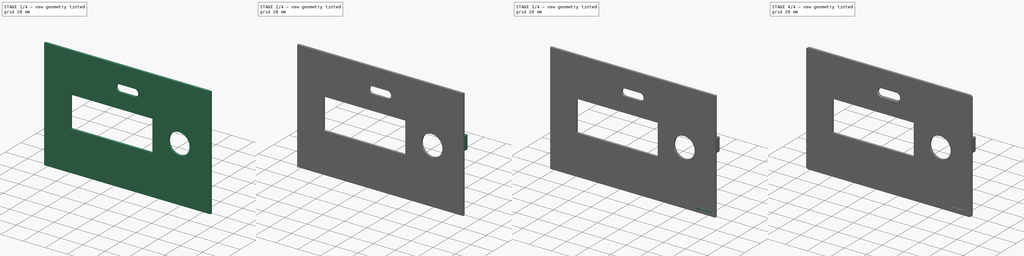
[diagram: build sequence overview — one tinted view per stage of 4, left to right]
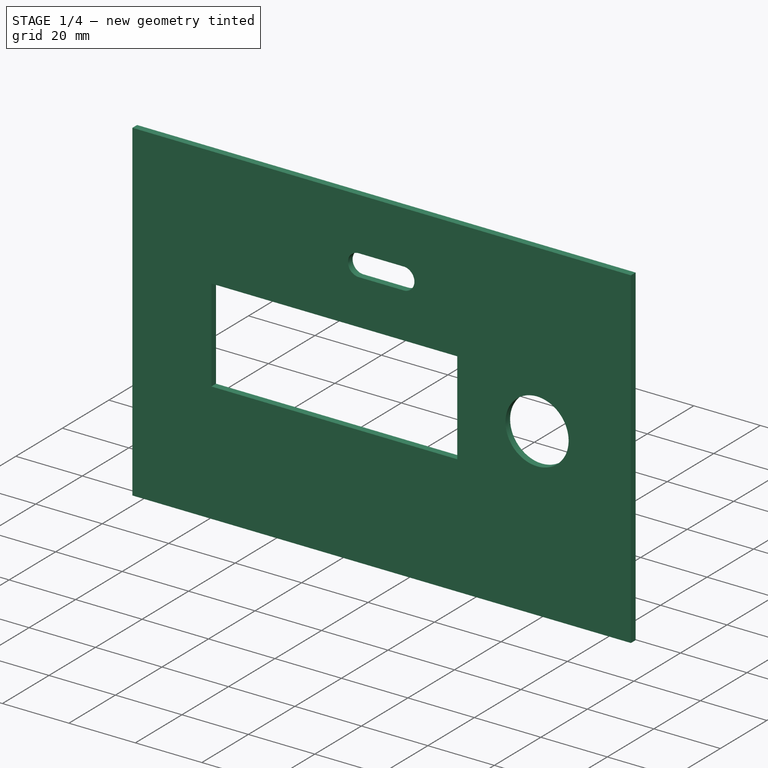
[diagram: stage 1 of 4 — iso view after this stage's code; geometry added in this stage tinted green]
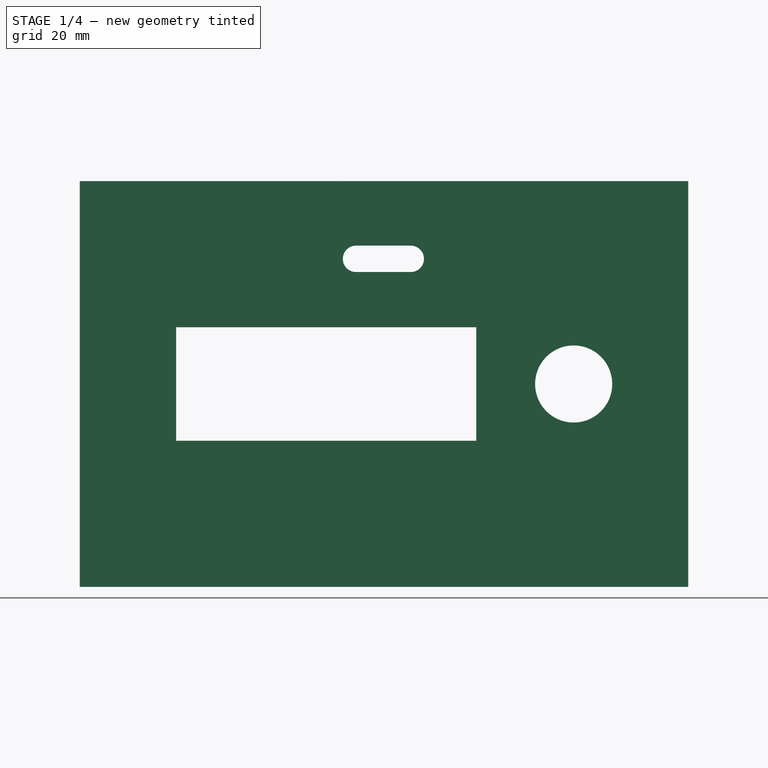
[diagram: stage 1 of 4 — front view after this stage's code; geometry added in this stage tinted green]
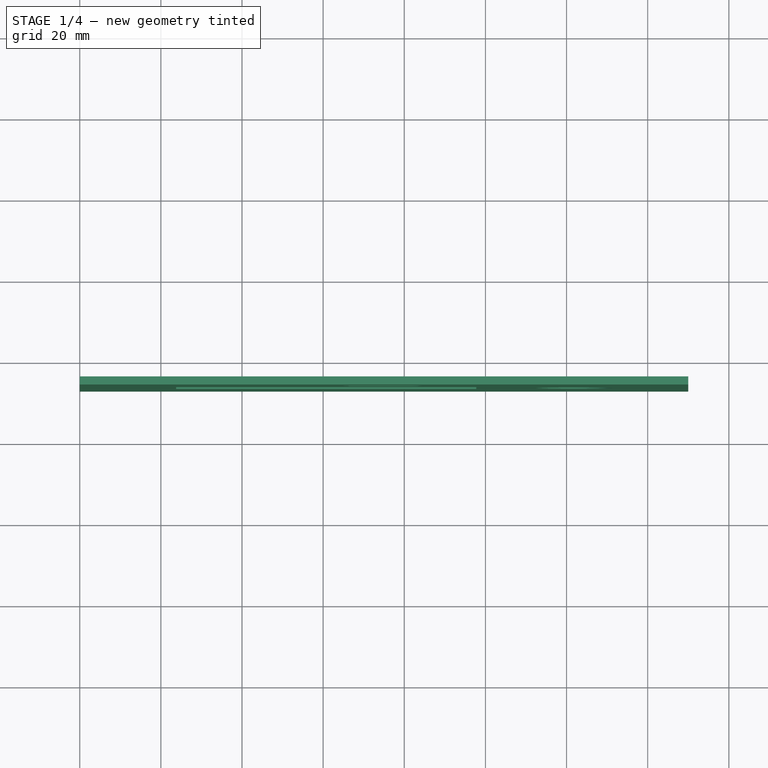
[diagram: stage 1 of 4 — top view after this stage's code; geometry added in this stage tinted green]
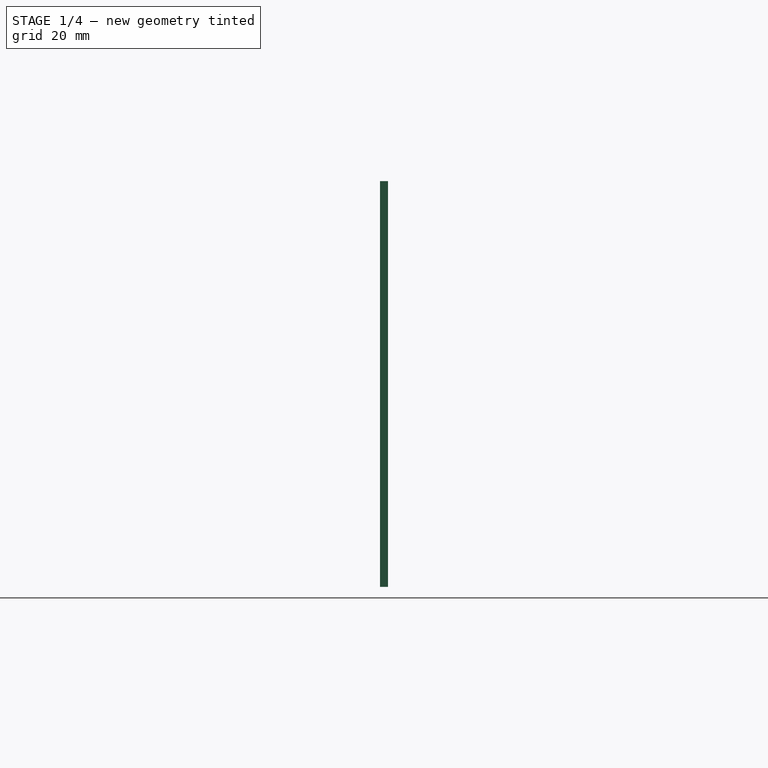
[diagram: stage 1 of 4 — right view after this stage's code; geometry added in this stage tinted green]
FCSTD DOCUMENT  (FreeCAD 0.19R22665 (Git))
Label: coperchio
License: All rights reserved
LicenseURL: http://en.wikipedia.org/wiki/All_rights_reserved
objects: Sketcher::SketchObject×7, PartDesign::Pocket×5, PartDesign::Pad×3, PartDesign::CoordinateSystem×2, PartDesign::Body×2, Part::Fillet×2, Part::Part2DObjectPython×1, Part::Extrusion×1, Part::MultiFuse×1, App::Part×1
note: 32 computed .brp shape members not serialized (recipe doc carries the construction recipe); baked Part::Feature solids carry a one-line shape summary decoded from their .brp

FEATURE [Sketcher::SketchObject] Sketch008
  MapMode = 5
  Placement = pos=(0,-45,1e-16) rot=(1,0,0;1.5708rad)
  sketch-geometry (4):
    g0: LineSegment StartX=0 StartY=0 StartZ=0 EndX=150 EndY=0 EndZ=0
    g1: LineSegment StartX=150 StartY=0 StartZ=0 EndX=150 EndY=100 EndZ=0
    g2: LineSegment StartX=150 StartY=100 StartZ=0 EndX=0 EndY=100 EndZ=0
    g3: LineSegment StartX=0 StartY=100 StartZ=0 EndX=0 EndY=0 EndZ=0
  constraints (11):
    c: Coincident(g0,g1)
    c: Coincident(g1,g2)
    c: Coincident(g2,g3)
    c: Coincident(g3,g0)
    c: Horizontal(g0)
    c: Horizontal(g2)
    c: Vertical(g1)
    c: Vertical(g3)
    c: Coincident(g0,g-1)
    c: DistanceY(g0,g2) = 100
    c: DistanceX(g0,g0) = 150
FEATURE [PartDesign::Pad] Pad002
  Direction = (1,1,1)
  Length = 2
  Length2 = 100
  Placement = pos=(0,-45,1e-16) rot=(1,0,0;1.5708rad)
  Profile = -> Sketch008
  Type = 0
FEATURE [Sketcher::SketchObject] Sketch009
  ExternalGeometry = -> [Pad002]
  MapMode = 5
  Placement = pos=(0,-47,5e-16) rot=(1,0,0;1.5708rad)
  Support = -> [Pad002]
  sketch-geometry (22):
    g0: LineSegment StartX=23.75 StartY=64 StartZ=0 EndX=97.75 EndY=64 EndZ=0
    g1: LineSegment StartX=97.75 StartY=64 StartZ=0 EndX=97.75 EndY=36 EndZ=0
    g2: LineSegment StartX=97.75 StartY=36 StartZ=0 EndX=23.75 EndY=36 EndZ=0
    g3: LineSegment StartX=23.75 StartY=36 StartZ=0 EndX=23.75 EndY=64 EndZ=0
    g4: LineSegment [constr] StartX=18.75 StartY=86 StartZ=0 EndX=101.75 EndY=86 EndZ=0
    g5: LineSegment [constr] StartX=101.75 StartY=86 StartZ=0 EndX=101.75 EndY=14 EndZ=0
    g6: LineSegment [constr] StartX=101.75 StartY=14 StartZ=0 EndX=18.75 EndY=14 EndZ=0
    g7: LineSegment [constr] StartX=18.75 StartY=14 StartZ=0 EndX=18.75 EndY=86 EndZ=0
    g8: Circle CenterX=121.75 CenterY=50 CenterZ=0 NormalX=0 NormalY=0 NormalZ=1 AngleXU=0 Radius=9.5
    g9: LineSegment [constr] StartX=20.75 StartY=68 StartZ=0 EndX=100.75 EndY=68 EndZ=0
    g10: LineSegment [constr] StartX=100.75 StartY=68 StartZ=0 EndX=100.75 EndY=32 EndZ=0
    g11: LineSegment [constr] StartX=100.75 StartY=32 StartZ=0 EndX=20.75 EndY=32 EndZ=0
    g12: LineSegment [constr] StartX=20.75 StartY=32 StartZ=0 EndX=20.75 EndY=68 EndZ=0
    g13: LineSegment [constr] StartX=0 StartY=50 StartZ=0 EndX=150 EndY=50 EndZ=0
    g14: LineSegment [constr] StartX=60.75 StartY=68 StartZ=0 EndX=60.75 EndY=32 EndZ=0
    g15: Circle [constr] CenterX=9.375 CenterY=50 CenterZ=0 NormalX=0 NormalY=0 NormalZ=1 AngleXU=0 Radius=9.375
    g16: Circle [constr] CenterX=140.625 CenterY=50 CenterZ=0 NormalX=0 NormalY=0 NormalZ=1 AngleXU=0 Radius=9.375
    g17: ArcOfCircle CenterX=68.1 CenterY=80.85 CenterZ=0 NormalX=0 NormalY=0 NormalZ=1 AngleXU=0 Radius=3.25 StartAngle=1.5708 EndAngle=4.71239
    g18: ArcOfCircle CenterX=81.6 CenterY=80.85 CenterZ=0 NormalX=0 NormalY=0 NormalZ=1 AngleXU=0 Radius=3.25 StartAngle=4.71239 EndAngle=7.85398
    g19: LineSegment StartX=68.1 StartY=77.6 StartZ=0 EndX=81.6 EndY=77.6 EndZ=0
    g20: LineSegment StartX=68.1 StartY=84.1 StartZ=0 EndX=81.6 EndY=84.1 EndZ=0
    g21: LineSegment [constr] StartX=64.85 StartY=80.85 StartZ=0 EndX=84.85 EndY=80.85 EndZ=0
  constraints (61):
    c: Coincident(g0,g1)
    c: Coincident(g1,g2)
    c: Coincident(g2,g3)
    c: Coincident(g3,g0)
    c: Horizontal(g0)
    c: Horizontal(g2)
    c: Vertical(g1)
    c: Coincident(g4,g5)
    c: Coincident(g5,g6)
    c: Coincident(g6,g7)
    c: Coincident(g7,g4)
    c: Horizontal(g4)
    c: Horizontal(g6)
    c: Vertical(g5)
    c: Diameter(g8) = 19
    c: DistanceX(g4,g4) = 83
    c: Coincident(g9,g10)
    c: Coincident(g10,g11)
    c: Coincident(g11,g12)
    c: Coincident(g12,g9)
    c: Horizontal(g11)
    c: Vertical(g10)
    c: Vertical(g12)
    c: DistanceX(g9,g9) = 80
    c: DistanceX(g6,g11) = 2
    c: DistanceY(g9,g4) = 18
    c: DistanceY(g6,g11) = 18
    c: DistanceY(g12,g12) = 36
    c: PointOnObject(g13,g-3)
    c: PointOnObject(g13,g-6)
    c: Symmetric(g-4,g-1,g13)
    c: Symmetric(g4,g6,g13)
    c: PointOnObject(g8,g13)
    c: Symmetric(g0,g2,g13)
    c: PointOnObject(g14,g9)
    c: PointOnObject(g14,g11)
    c: Symmetric(g9,g9,g14)
    c: Symmetric(g0,g0,g14)
    c: Distance(g0) = 74
    c: Distance(g3) = 28
    c: Distance(g8,g5) = 20
    c: PointOnObject(g15,g13)
    c: PointOnObject(g13,g15)
    c: Tangent(g15,g7)
    c: PointOnObject(g16,g13)
    c: PointOnObject(g13,g16)
    c: Tangent(g16,g8)
    c: Equal(g16,g15)
    c: Tangent(g17,g20)
    c: Tangent(g17,g19)
    c: Tangent(g19,g18)
    c: Tangent(g20,g18)
    c: Horizontal(g19)
    c: Equal(g17,g18)
    c: DistanceY(g9,g18) = 9.6
    c: DistanceY(g18,g18) = 6.5
    c: PointOnObject(g21,g17)
    c: PointOnObject(g21,g18)
    c: Symmetric(g17,g17,g21)
    c: Distance(g21,g21) = 20
    c: DistanceX(g21,g9) = 15.9
FEATURE [PartDesign::Pocket] Pocket004
  BaseFeature = -> Pad002
  Length = 5
  Length2 = 100
  Placement = pos=(0,-45,1e-16) rot=(1,0,0;1.5708rad)
  Profile = -> Sketch009
  Type = 2
FEATURE [Sketcher::SketchObject] Sketch012
  MapMode = 5
  Placement = pos=(97.75,-45,0) rot=(0.707107,0,-0.707107;3.14159rad)
  sketch-geometry (5):
    g0: LineSegment StartX=-41 StartY=-1.54e-14 StartZ=0 EndX=-59 EndY=-1.54e-14 EndZ=0
    g1: LineSegment StartX=-59 StartY=-1.54e-14 StartZ=0 EndX=-59 EndY=1 EndZ=0
    g2: LineSegment StartX=-59 StartY=1 StartZ=0 EndX=-41 EndY=1 EndZ=0
    g3: LineSegment StartX=-41 StartY=1 StartZ=0 EndX=-41 EndY=-1.54e-14 EndZ=0
    g4: LineSegment [constr] StartX=-50 StartY=2 StartZ=0 EndX=-50 EndY=-1.55e-14 EndZ=0
  constraints (11):
    c: Coincident(g0,g1)
    c: Coincident(g1,g2)
    c: Coincident(g2,g3)
    c: Coincident(g3,g0)
    c: Horizontal(g0)
    c: Vertical(g1)
    c: Vertical(g3)
    c: Symmetric(g1,g2,g4)
    c: DistanceY(g1,g1) = 1
    c: DistanceX(g2,g2) = 18
    c: PointOnObject(g4,g0)
FEATURE [PartDesign::Pocket] Pocket007
  BaseFeature = -> Pocket004
  Length = 6
  Length2 = 100
  Placement = pos=(0,-45,1e-16) rot=(1,0,0;1.5708rad)
  Profile = -> Sketch012
  Type = 0
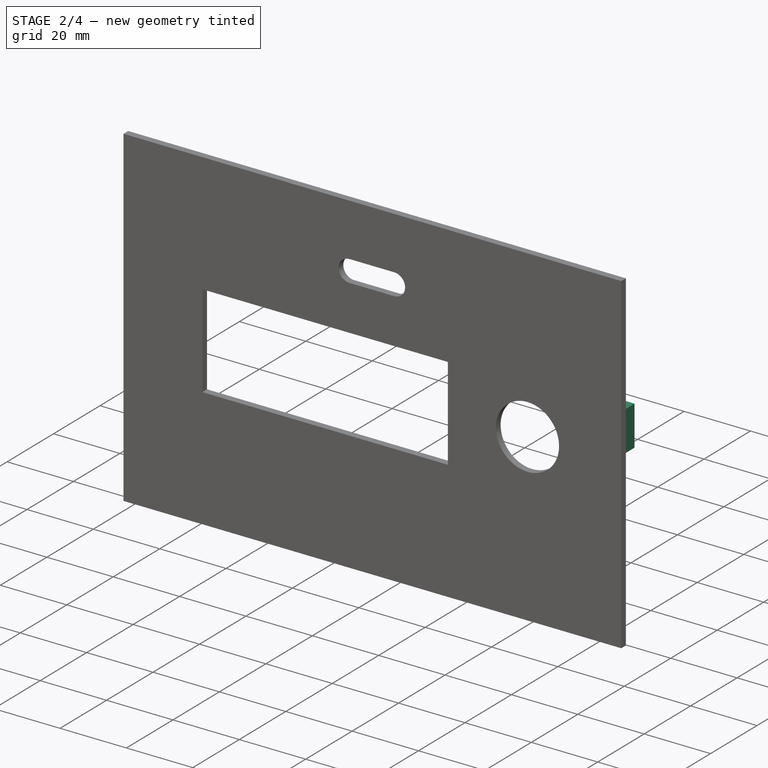
[diagram: stage 2 of 4 — iso view after this stage's code; geometry added in this stage tinted green]
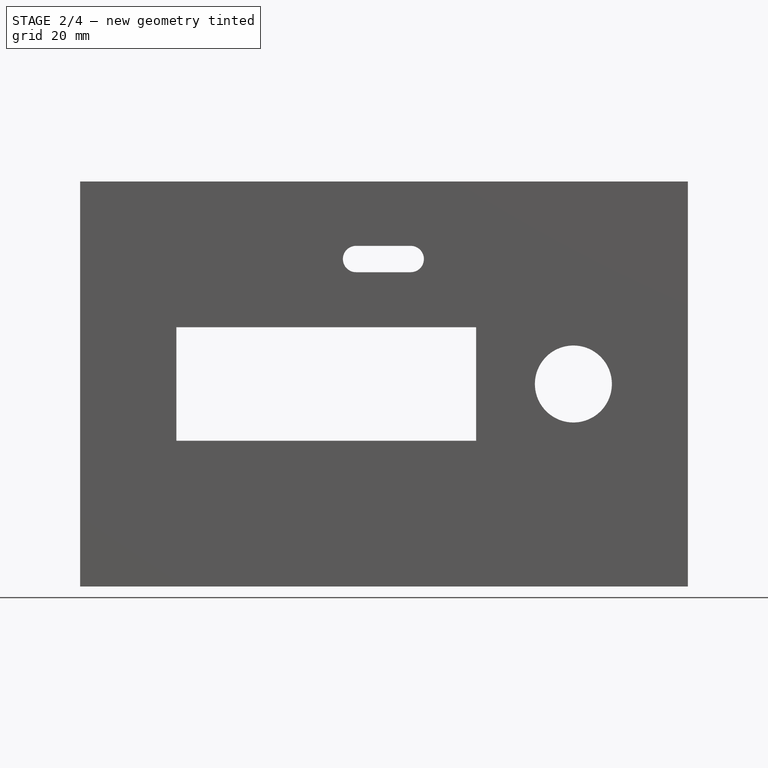
[diagram: stage 2 of 4 — front view after this stage's code; geometry added in this stage tinted green]
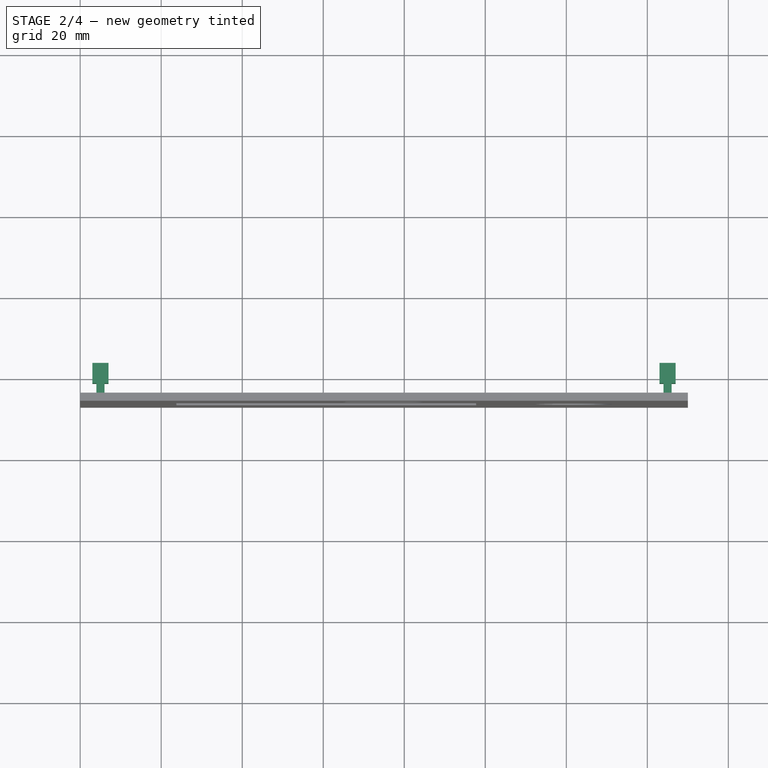
[diagram: stage 2 of 4 — top view after this stage's code; geometry added in this stage tinted green]
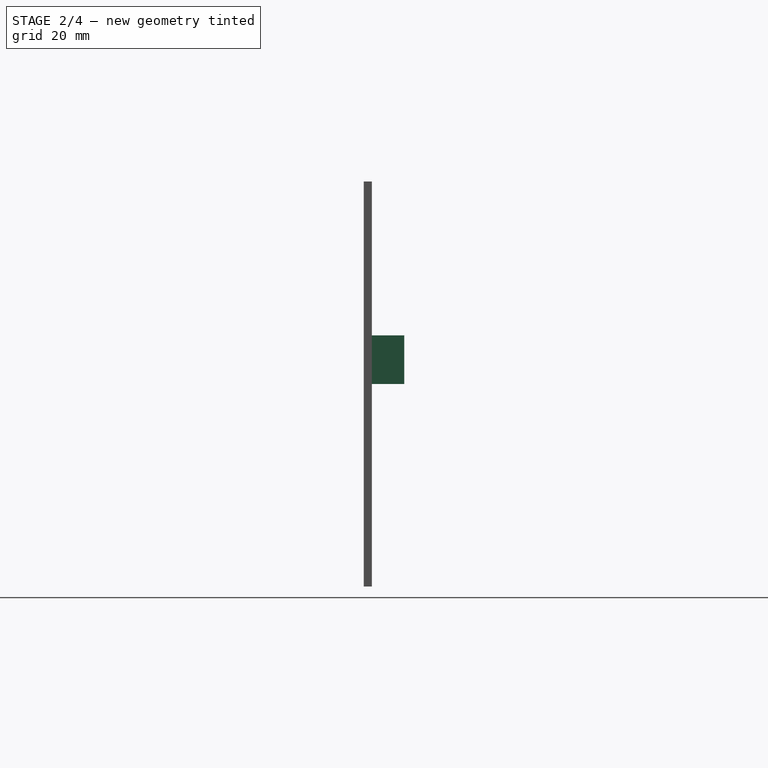
[diagram: stage 2 of 4 — right view after this stage's code; geometry added in this stage tinted green]
FEATURE [PartDesign::CoordinateSystem] LCS_button
  AttacherType = Attacher::AttachEngine3D
  MapMode = 11
  Placement = pos=(121.75,-47,50) rot=(0.57735,-0.57735,0.57735;2.0944rad)
  Support = -> [Pocket007]
FEATURE [Sketcher::SketchObject] Sketch
  ExternalGeometry = -> [Pocket007]
  MapMode = 5
  Placement = pos=(0,-45,1e-16) rot=(-1,0,0;1.5708rad)
  Support = -> [Pocket007]
  sketch-geometry (9):
    g0: LineSegment StartX=2 StartY=-50 StartZ=0 EndX=8 EndY=-50 EndZ=0
    g1: LineSegment StartX=8 StartY=-50 StartZ=0 EndX=8 EndY=-62 EndZ=0
    g2: LineSegment StartX=8 StartY=-62 StartZ=0 EndX=2 EndY=-62 EndZ=0
    g3: LineSegment StartX=2 StartY=-62 StartZ=0 EndX=2 EndY=-50 EndZ=0
    g4: LineSegment [constr] StartX=0 StartY=-50 StartZ=0 EndX=150 EndY=-50 EndZ=0
    g5: LineSegment StartX=142 StartY=-50 StartZ=0 EndX=148 EndY=-50 EndZ=0
    g6: LineSegment StartX=148 StartY=-50 StartZ=0 EndX=148 EndY=-62 EndZ=0
    g7: LineSegment StartX=148 StartY=-62 StartZ=0 EndX=142 EndY=-62 EndZ=0
    g8: LineSegment StartX=142 StartY=-62 StartZ=0 EndX=142 EndY=-50 EndZ=0
  constraints (27):
    c: Coincident(g0,g1)
    c: Coincident(g1,g2)
    c: Coincident(g2,g3)
    c: Coincident(g3,g0)
    c: Horizontal(g0)
    c: Horizontal(g2)
    c: Vertical(g3)
    c: PointOnObject(g4,g-4)
    c: PointOnObject(g4,g-3)
    c: Symmetric(g-1,g-5,g4)
    c: DistanceX(g4,g0) = 2
    c: DistanceY(g1,g1) = 12
    c: DistanceX(g0,g0) = 6
    c: Coincident(g5,g6)
    c: Coincident(g6,g7)
    c: Coincident(g7,g8)
    c: Coincident(g8,g5)
    c: Horizontal(g5)
    c: Horizontal(g7)
    c: Vertical(g8)
    c: Equal(g8,g1)
    c: Equal(g0,g5)
    c: DistanceX(g6,g4) = 2
    c: Vertical(g6)
    c: Vertical(g1)
    c: PointOnObject(g5,g4)
    c: PointOnObject(g0,g4)
FEATURE [PartDesign::Pad] Pad
  BaseFeature = -> Pocket007
  Direction = (1,1,1)
  Length = 8
  Length2 = 100
  Placement = pos=(0,-45,1e-16) rot=(1,0,0;1.5708rad)
  Profile = -> Sketch
  Type = 0
FEATURE [Sketcher::SketchObject] Sketch013
  ExternalGeometry = -> [Pad]
  MapMode = 5
  Placement = pos=(0,-45,50) rot=(1,0,0;3.14159rad)
  Support = -> [Pad]
  sketch-geometry (24):
    g0: LineSegment StartX=2 StartY=-8 StartZ=0 EndX=3 EndY=-8 EndZ=0
    g1: LineSegment StartX=3 StartY=-8 StartZ=0 EndX=3 EndY=-3 EndZ=0
    g2: LineSegment StartX=3 StartY=-3 StartZ=0 EndX=4 EndY=-3 EndZ=0
    g3: LineSegment StartX=4 StartY=-3 StartZ=0 EndX=4 EndY=0 EndZ=0
    g4: LineSegment StartX=4 StartY=0 StartZ=0 EndX=2 EndY=0 EndZ=0
    g5: LineSegment StartX=2 StartY=0 StartZ=0 EndX=2 EndY=-8 EndZ=0
    g6: LineSegment StartX=7 StartY=-8 StartZ=0 EndX=8 EndY=-8 EndZ=0
    g7: LineSegment StartX=8 StartY=-8 StartZ=0 EndX=8 EndY=0 EndZ=0
    g8: LineSegment StartX=8 StartY=0 StartZ=0 EndX=6 EndY=0 EndZ=0
    g9: LineSegment StartX=6 StartY=0 StartZ=0 EndX=6 EndY=-3 EndZ=0
    g10: LineSegment StartX=6 StartY=-3 StartZ=0 EndX=7 EndY=-3 EndZ=0
    g11: LineSegment StartX=7 StartY=-3 StartZ=0 EndX=7 EndY=-8 EndZ=0
    g12: LineSegment StartX=142 StartY=-8 StartZ=0 EndX=143 EndY=-8 EndZ=0
    g13: LineSegment StartX=143 StartY=-8 StartZ=0 EndX=143 EndY=-3 EndZ=0
    g14: LineSegment StartX=143 StartY=-3 StartZ=0 EndX=144 EndY=-3 EndZ=0
    g15: LineSegment StartX=144 StartY=-3 StartZ=0 EndX=144 EndY=1.2e-14 EndZ=0
    g16: LineSegment StartX=144 StartY=1.2e-14 StartZ=0 EndX=142 EndY=0 EndZ=0
    g17: LineSegment StartX=142 StartY=0 StartZ=0 EndX=142 EndY=-8 EndZ=0
    g18: LineSegment StartX=146 StartY=0 StartZ=0 EndX=146 EndY=-3 EndZ=0
    g19: LineSegment StartX=146 StartY=-3 StartZ=0 EndX=147 EndY=-3 EndZ=0
    g20: LineSegment StartX=147 StartY=-3 StartZ=0 EndX=147 EndY=-8 EndZ=0
    g21: LineSegment StartX=147 StartY=-8 StartZ=0 EndX=148 EndY=-8 EndZ=0
    g22: LineSegment StartX=148 StartY=-8 StartZ=0 EndX=148 EndY=0 EndZ=0
    g23: LineSegment StartX=148 StartY=0 StartZ=0 EndX=146 EndY=0 EndZ=0
  constraints (64):
    c: Coincident(g-5,g0)
    c: PointOnObject(g0,g-3)
    c: Coincident(g0,g1)
    c: Vertical(g1)
    c: Coincident(g1,g2)
    c: Horizontal(g2)
    c: Coincident(g2,g3)
    c: PointOnObject(g3,g-6)
    c: Vertical(g3)
    c: Coincident(g3,g4)
    c: Coincident(g4,g-5)
    c: Coincident(g4,g5)
    c: Coincident(g5,g0)
    c: DistanceX(g0,g0) = 1
    c: DistanceY(g1,g1) = 5
    c: DistanceX(g2,g2) = 1
    c: PointOnObject(g6,g-3)
    c: Coincident(g6,g-4)
    c: Coincident(g6,g7)
    c: Coincident(g7,g-4)
    c: Coincident(g7,g8)
    c: PointOnObject(g8,g-6)
    c: Coincident(g8,g9)
    c: Vertical(g9)
    c: Coincident(g9,g10)
    c: Coincident(g10,g11)
    c: Coincident(g11,g6)
    c: Vertical(g11)
    c: Equal(g2,g10)
    c: Equal(g9,g3)
    c: Equal(g11,g1)
    c: Equal(g6,g0)
    c: Coincident(g-9,g12)
    c: PointOnObject(g12,g-9)
    c: Coincident(g12,g13)
    c: Vertical(g13)
    c: Coincident(g13,g14)
    c: Horizontal(g14)
    c: Coincident(g14,g15)
    c: Vertical(g15)
    c: Coincident(g15,g16)
    c: Coincident(g16,g-7)
    c: Coincident(g16,g17)
    c: Coincident(g17,g12)
    c: PointOnObject(g18,g-6)
    c: Vertical(g18)
    c: Coincident(g18,g19)
    c: Horizontal(g19)
    c: Coincident(g19,g20)
    c: Vertical(g20)
    c: Coincident(g20,g21)
    c: Coincident(g21,g-9)
    c: Coincident(g21,g22)
    c: Coincident(g22,g-8)
    c: Coincident(g22,g23)
    c: Coincident(g23,g18)
    c: Equal(g12,g21)
    c: Equal(g13,g20)
    c: Equal(g14,g19)
    c: Equal(g15,g18)
    c: Equal(g12,g6)
    c: Equal(g11,g20)
    c: Equal(g15,g9)
    c: Equal(g2,g14)
FEATURE [PartDesign::Pocket] Pocket
  Length = 12
  Length2 = 6
  Placement = pos=(0,-45,1e-16) rot=(1,0,0;1.5708rad)
  Profile = -> Sketch013
  Type = 0
FEATURE [PartDesign::Body] Body
  Group = -> [Pocket,Sketch014,Pad003,Sketch015,Pocket008]
  Origin = -> Origin
  Tip = -> Pocket008
FEATURE [PartDesign::Pocket] Pocket009
  BaseFeature = -> Pad
  Length = 12
  Length2 = 100
  Placement = pos=(0,-45,1e-16) rot=(1,0,0;1.5708rad)
  Profile = -> Sketch013
  Type = 0
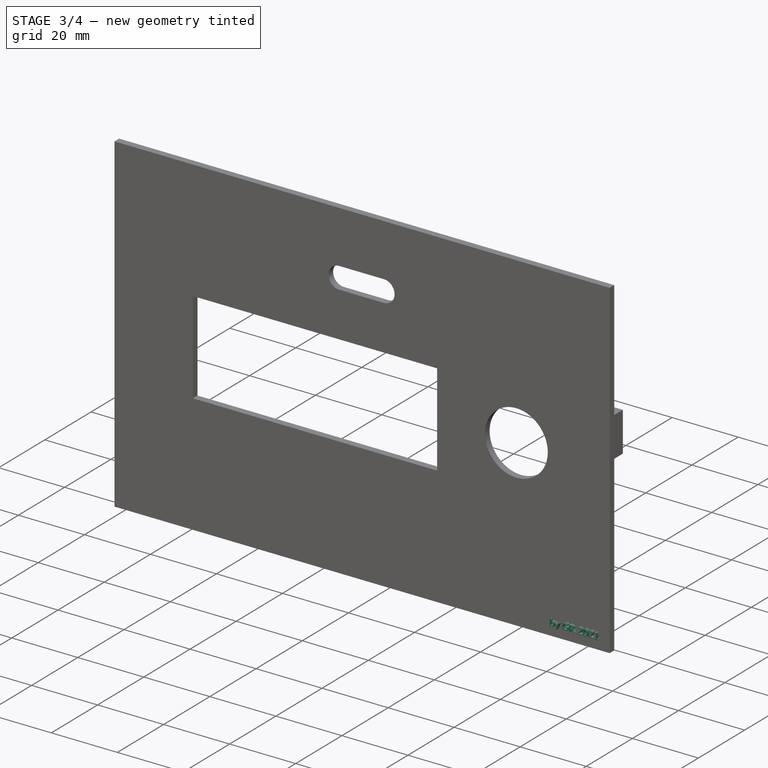
[diagram: stage 3 of 4 — iso view after this stage's code; geometry added in this stage tinted green]
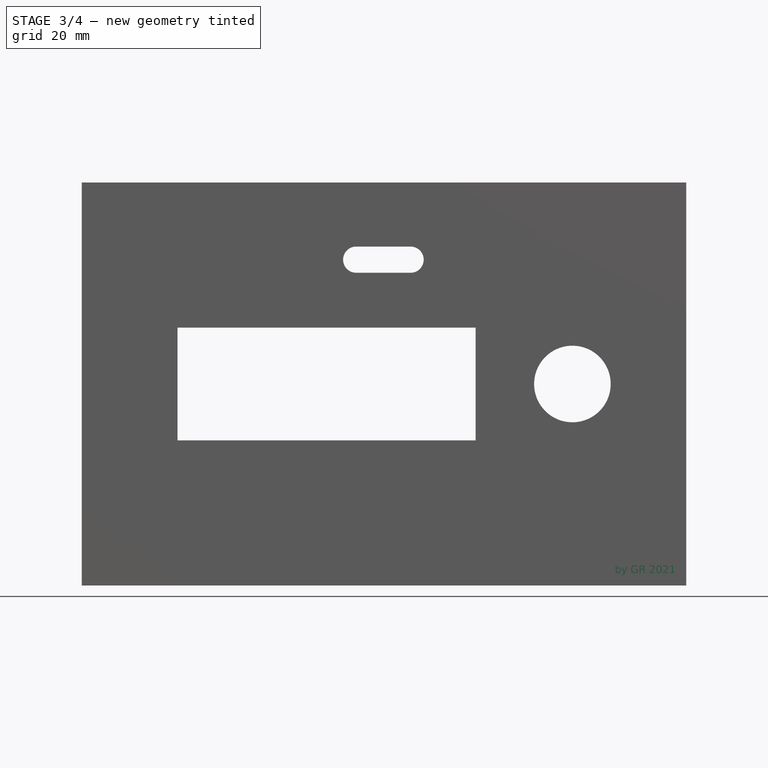
[diagram: stage 3 of 4 — front view after this stage's code; geometry added in this stage tinted green]
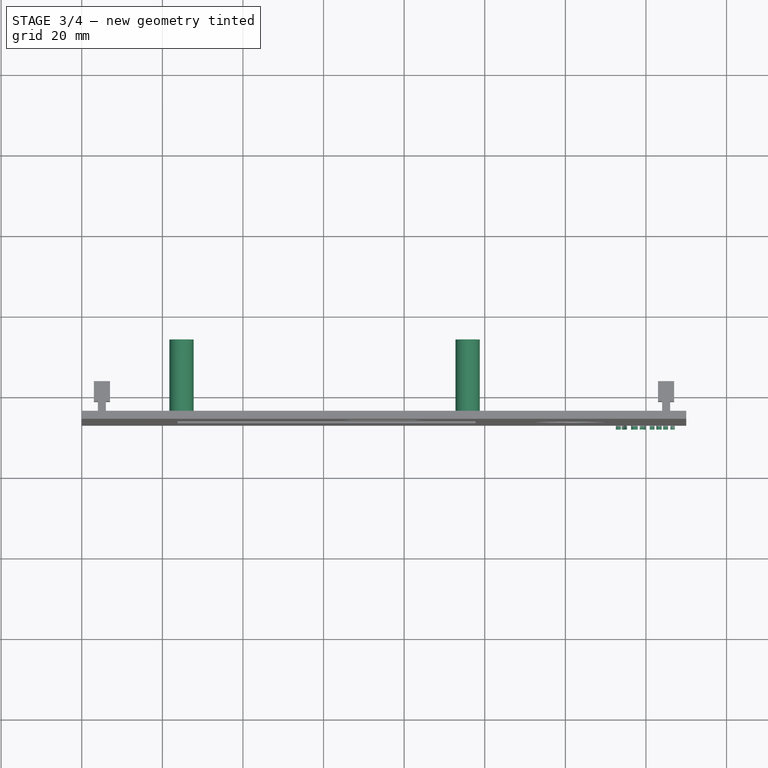
[diagram: stage 3 of 4 — top view after this stage's code; geometry added in this stage tinted green]
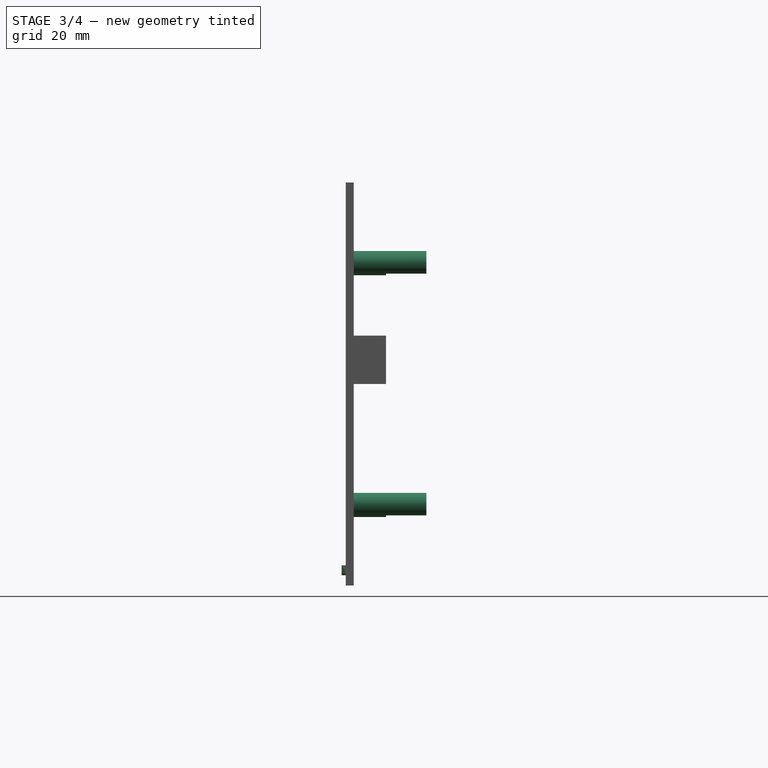
[diagram: stage 3 of 4 — right view after this stage's code; geometry added in this stage tinted green]
FEATURE [Part::Part2DObjectPython] ShapeString  # Draft 2D object (typed FeaturePython)
  FontFile = <path>
  Placement = pos=(111.263,-47,22.0884) rot=(1,0,0;1.5708rad)
  Size = 2
  String = by GR 2021
  Tracking = 0
FEATURE [Part::Extrusion] Extrude002
  Base = -> ShapeString
  Dir = (0,-1,2e-16)
  DirMode = 2
  FaceMakerClass = Part::FaceMakerBullseye
  LengthFwd = 1
  LengthRev = 0
  Placement = pos=(21,0,-19) rot=(0,0,1;0rad)
  Solid = false
  Symmetric = false
FEATURE [Sketcher::SketchObject] Sketch014
  ExternalGeometry = -> [Pocket]
  MapMode = 5
  Placement = pos=(0,-45,1e-16) rot=(-1,0,0;1.5708rad)
  Support = -> [Pocket]
  sketch-geometry (9):
    g0: LineSegment [constr] StartX=18.75 StartY=-14 StartZ=0 EndX=101.75 EndY=-14 EndZ=0
    g1: LineSegment [constr] StartX=101.75 StartY=-14 StartZ=0 EndX=101.75 EndY=-86 EndZ=0
    g2: LineSegment [constr] StartX=101.75 StartY=-86 StartZ=0 EndX=18.75 EndY=-86 EndZ=0
    g3: LineSegment [constr] StartX=18.75 StartY=-86 StartZ=0 EndX=18.75 EndY=-14 EndZ=0
    g4: LineSegment [constr] StartX=150 StartY=-50 StartZ=0 EndX=0 EndY=-50 EndZ=0
    g5: Circle CenterX=95.75 CenterY=-80 CenterZ=0 NormalX=0 NormalY=0 NormalZ=1 AngleXU=0 Radius=3
    g6: Circle CenterX=24.75 CenterY=-80 CenterZ=0 NormalX=0 NormalY=0 NormalZ=1 AngleXU=0 Radius=3
    g7: Circle CenterX=95.75 CenterY=-20 CenterZ=0 NormalX=0 NormalY=0 NormalZ=1 AngleXU=0 Radius=3
    g8: Circle CenterX=24.75 CenterY=-20 CenterZ=0 NormalX=0 NormalY=0 NormalZ=1 AngleXU=0 Radius=3
  constraints (26):
    c: Coincident(g0,g1)
    c: Coincident(g1,g2)
    c: Coincident(g2,g3)
    c: Coincident(g3,g0)
    c: Horizontal(g0)
    c: Horizontal(g2)
    c: Vertical(g1)
    c: DistanceX(g2,g2) = 83
    c: DistanceY(g3,g3) = 72
    c: PointOnObject(g4,g-5)
    c: Symmetric(g-5,g-1,g4)
    c: Symmetric(g2,g0,g4)
    c: Distance(g-8,g1) = 20
    c: Diameter(g5) = 6
    c: DistanceX(g5,g1) = 6
    c: DistanceY(g1,g5) = 6
    c: Equal(g5,g6)
    c: Equal(g7,g6)
    c: Equal(g7,g8)
    c: Horizontal(g6,g5)
    c: Vertical(g5,g7)
    c: DistanceY(g7,g0) = 6
    c: Horizontal(g8,g7)
    c: Vertical(g6,g8)
    c: DistanceX(g2,g6) = 6
    c: PointOnObject(g4,g-4)
FEATURE [PartDesign::Pad] Pad003
  BaseFeature = -> Pocket
  Direction = (1,1,1)
  Length = 18
  Length2 = 100
  Placement = pos=(0,-45,1e-16) rot=(1,0,0;1.5708rad)
  Profile = -> Sketch014
  Type = 0
FEATURE [Sketcher::SketchObject] Sketch015
  ExternalGeometry = -> [Pad003]
  MapMode = 5
  Placement = pos=(-1.42e-14,-27,-6.6e-15) rot=(-1,0,0;1.5708rad)
  Support = -> [Pad003]
  sketch-geometry (19):
    g0: Circle [constr] CenterX=95.75 CenterY=-80 CenterZ=0 NormalX=0 NormalY=0 NormalZ=1 AngleXU=0 Radius=1.5
    g1: LineSegment [constr] StartX=97.25 StartY=-80 StartZ=0 EndX=97.25 EndY=-77.4019 EndZ=0
    g2: LineSegment [constr] StartX=94.25 StartY=-80 StartZ=0 EndX=94.25 EndY=-77.4019 EndZ=0
    g3: ArcOfCircle CenterX=95.75 CenterY=-80 CenterZ=0 NormalX=0 NormalY=0 NormalZ=1 AngleXU=0 Radius=1.5 StartAngle=3.14159 EndAngle=6.28319
    g4: LineSegment StartX=97.25 StartY=-80 StartZ=0 EndX=97.25 EndY=-77.4019 EndZ=0
    g5: LineSegment StartX=94.25 StartY=-80 StartZ=0 EndX=94.25 EndY=-77.4019 EndZ=0
    g6: ArcOfCircle CenterX=95.75 CenterY=-80 CenterZ=0 NormalX=0 NormalY=0 NormalZ=1 AngleXU=0 Radius=3 StartAngle=1.0472 EndAngle=2.0944
    g7: ArcOfCircle CenterX=24.75 CenterY=-80 CenterZ=0 NormalX=0 NormalY=0 NormalZ=1 AngleXU=0 Radius=1.5 StartAngle=3.14159 EndAngle=6.28319
    g8: ArcOfCircle CenterX=24.75 CenterY=-80 CenterZ=0 NormalX=0 NormalY=0 NormalZ=1 AngleXU=0 Radius=3 StartAngle=1.0472 EndAngle=2.0944
    g9: LineSegment StartX=26.25 StartY=-80 StartZ=0 EndX=26.25 EndY=-77.4019 EndZ=0
    g10: LineSegment StartX=23.25 StartY=-80 StartZ=0 EndX=23.25 EndY=-77.4019 EndZ=0
    g11: ArcOfCircle CenterX=95.75 CenterY=-20 CenterZ=0 NormalX=0 NormalY=0 NormalZ=1 AngleXU=0 Radius=1.5 StartAngle=3.14159 EndAngle=6.28319
    g12: ArcOfCircle CenterX=95.75 CenterY=-20 CenterZ=0 NormalX=0 NormalY=0 NormalZ=1 AngleXU=0 Radius=3 StartAngle=1.0472 EndAngle=2.0944
    g13: LineSegment StartX=97.25 StartY=-20 StartZ=0 EndX=97.25 EndY=-17.4019 EndZ=0
    g14: LineSegment StartX=94.25 StartY=-20 StartZ=0 EndX=94.25 EndY=-17.4019 EndZ=0
    g15: ArcOfCircle CenterX=24.75 CenterY=-20 CenterZ=0 NormalX=0 NormalY=0 NormalZ=1 AngleXU=0 Radius=1.5 StartAngle=3.14159 EndAngle=6.28319
    g16: ArcOfCircle CenterX=24.75 CenterY=-20 CenterZ=0 NormalX=0 NormalY=0 NormalZ=1 AngleXU=0 Radius=3 StartAngle=1.0472 EndAngle=2.0944
    g17: LineSegment StartX=26.25 StartY=-20 StartZ=0 EndX=26.25 EndY=-17.4019 EndZ=0
    g18: LineSegment StartX=23.25 StartY=-20 StartZ=0 EndX=23.25 EndY=-17.4019 EndZ=0
  constraints (54):
    c: Diameter(g0) = 3
    c: PointOnObject(g1,g0)
    c: PointOnObject(g1,g-3)
    c: PointOnObject(g2,g-3)
    c: Vertical(g2)
    c: Vertical(g1)
    c: Coincident(g3,g0)
    c: Coincident(g3,g1)
    c: Coincident(g3,g2)
    c: Coincident(g4,g3)
    c: Coincident(g4,g1)
    c: Coincident(g5,g3)
    c: Coincident(g5,g2)
    c: Coincident(g6,g3)
    c: Coincident(g6,g4)
    c: Coincident(g6,g5)
    c: Coincident(g7,g-4)
    c: Coincident(g8,g7)
    c: PointOnObject(g8,g-4)
    c: Coincident(g9,g8)
    c: Vertical(g9)
    c: Coincident(g10,g7)
    c: Coincident(g10,g8)
    c: Vertical(g10)
    c: Tangent(g9,g7) = -1.5708
    c: Equal(g8,g6)
    c: Equal(g7,g3)
    c: Equal(g9,g5)
    c: Equal(g9,g10)
    c: Equal(g4,g5)
    c: Coincident(g11,g-5)
    c: Coincident(g12,g11)
    c: PointOnObject(g12,g-5)
    c: Coincident(g13,g11)
    c: Coincident(g13,g12)
    c: Coincident(g14,g11)
    c: Coincident(g14,g12)
    c: Vertical(g14)
    c: Equal(g13,g14)
    c: Equal(g14,g10)
    c: Equal(g7,g11)
    c: Vertical(g13)
    c: Coincident(g15,g-6)
    c: Coincident(g16,g15)
    c: PointOnObject(g16,g-6)
    c: Coincident(g17,g15)
    c: Coincident(g17,g16)
    c: Coincident(g18,g15)
    c: Coincident(g18,g16)
    c: Vertical(g17)
    c: Vertical(g18)
    c: Equal(g17,g18)
    c: Equal(g15,g7)
    c: Equal(g18,g10)
FEATURE [PartDesign::Pocket] Pocket008
  BaseFeature = -> Pad003
  Length = 10
  Length2 = 100
  Placement = pos=(0,-45,1e-16) rot=(1,0,0;1.5708rad)
  Profile = -> Sketch015
  Type = 0
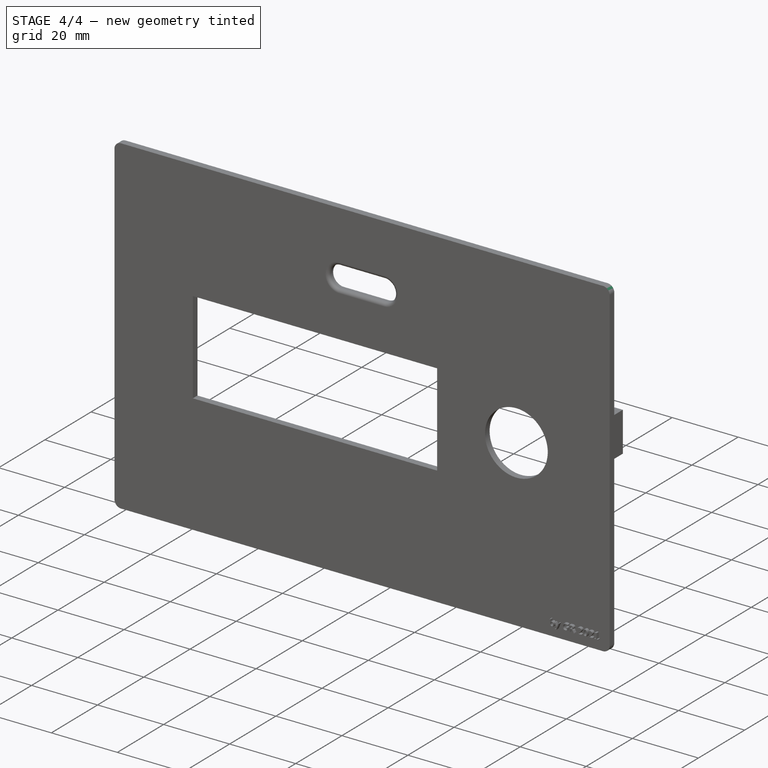
[diagram: stage 4 of 4 — iso view after this stage's code; geometry added in this stage tinted green]
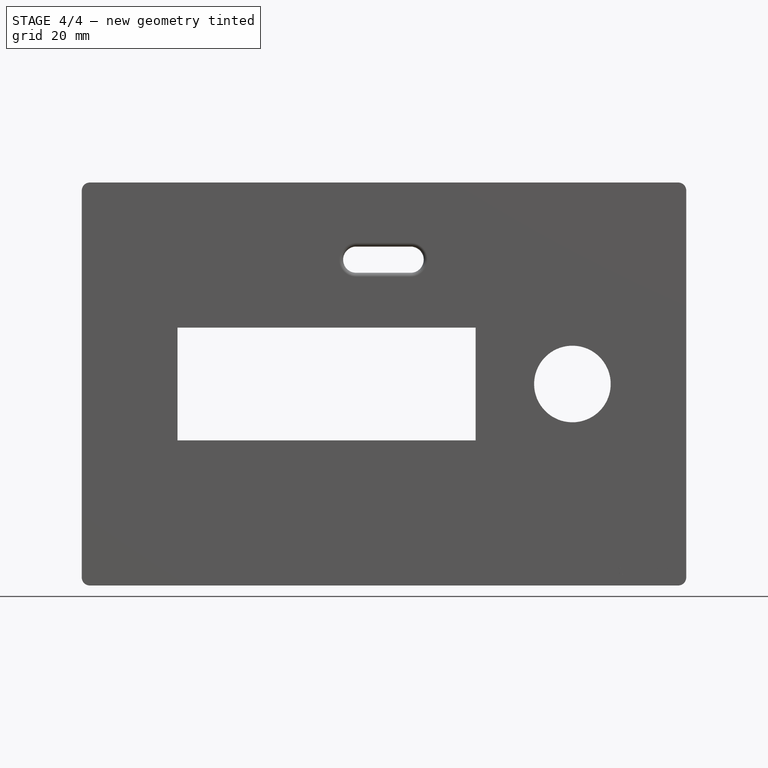
[diagram: stage 4 of 4 — front view after this stage's code; geometry added in this stage tinted green]
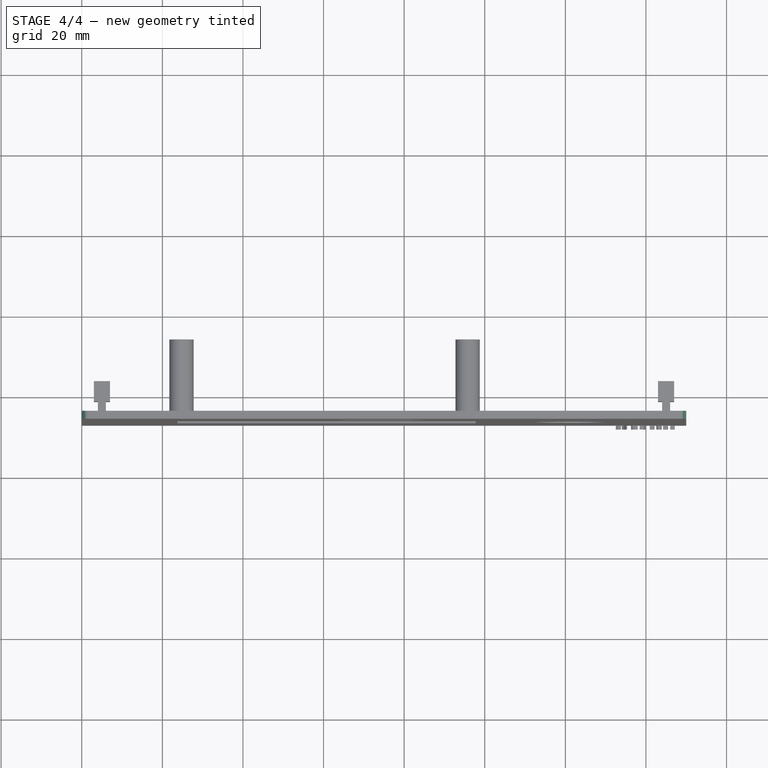
[diagram: stage 4 of 4 — top view after this stage's code; geometry added in this stage tinted green]
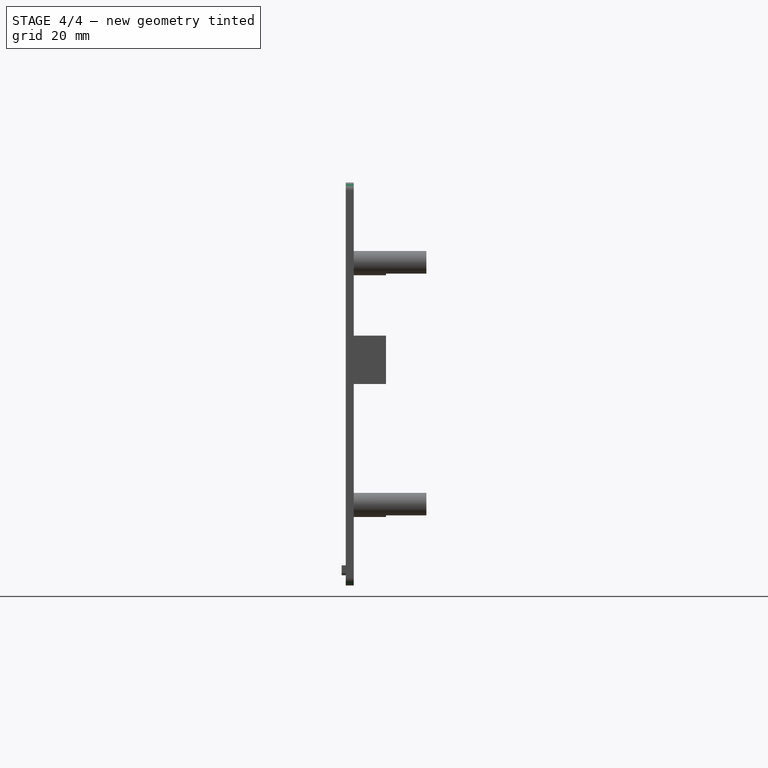
[diagram: stage 4 of 4 — right view after this stage's code; geometry added in this stage tinted green]
FEATURE [PartDesign::Body] Body001  label="coperchio"
  Group = -> [Sketch008,Pad002,Sketch009,Pocket004,Sketch012,Pocket007,Sketch,Pad,Sketch013,Pocket009]
  Origin = -> Origin001
  Tip = -> Pocket009
FEATURE [Part::MultiFuse] Fusion
  Shapes = -> [Body001,Extrude002,Body]
FEATURE [PartDesign::CoordinateSystem] LCS_box
  AttacherType = Attacher::AttachEngine3D
  MapMode = 7
  Placement = pos=(3,-37,50) rot=(0.57735,-0.57735,-0.57735;2.0944rad)
  Support = -> [Fusion]
FEATURE [Part::Fillet] Fillet
  Base = -> Fusion
  Edges = 4 edges r=2: [Edge1,Edge2,Edge5,Edge8]
FEATURE [Part::Fillet] Fillet001
  Base = -> Fillet
  Edges = 4 edges r=1: [Edge54,Edge55,Edge56,Edge57]
FEATURE [App::Part] Part  label="coperchio_completo"
  Group = -> [Body001,ShapeString,Extrude002,LCS_box,LCS_button,Body,Fusion,Fillet,Fillet001]
  Origin = -> Origin002
note: 1 file-system path scrubbed to <path> (originals preserved in the JSON sidecar)
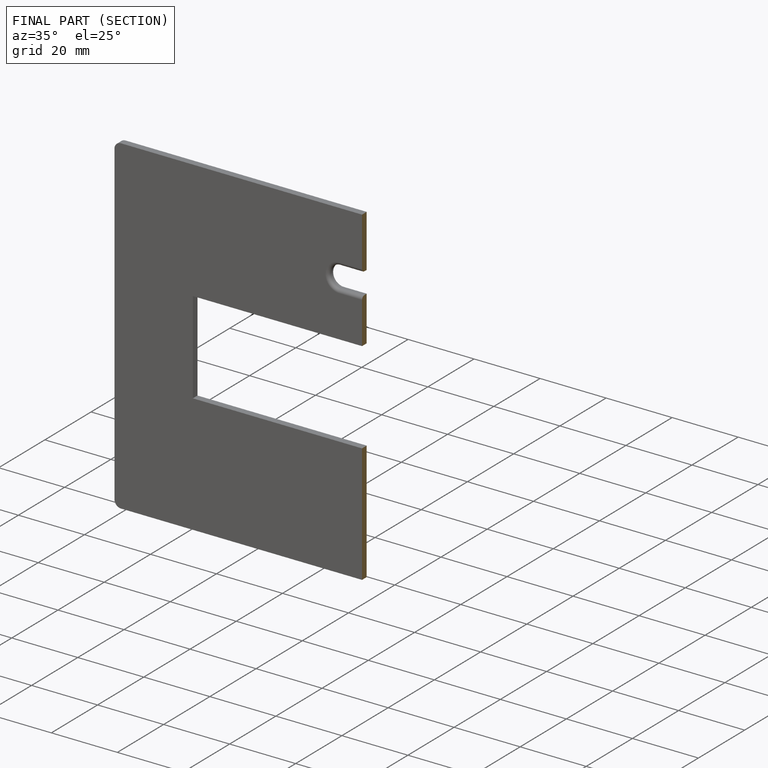
[diagram: finished part — half-section view (interior)]
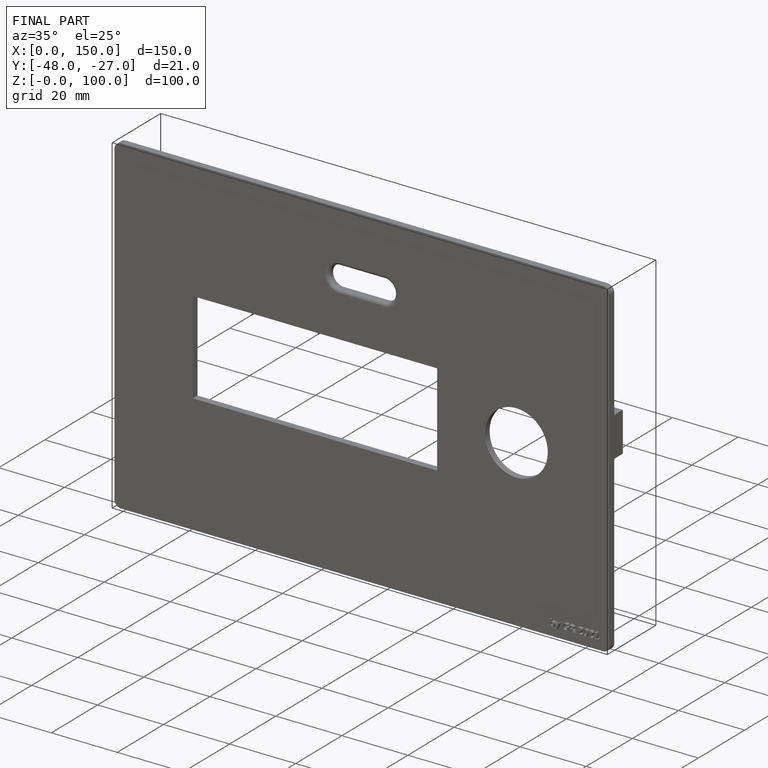
[diagram: finished part — iso view with bounding-box wireframe]
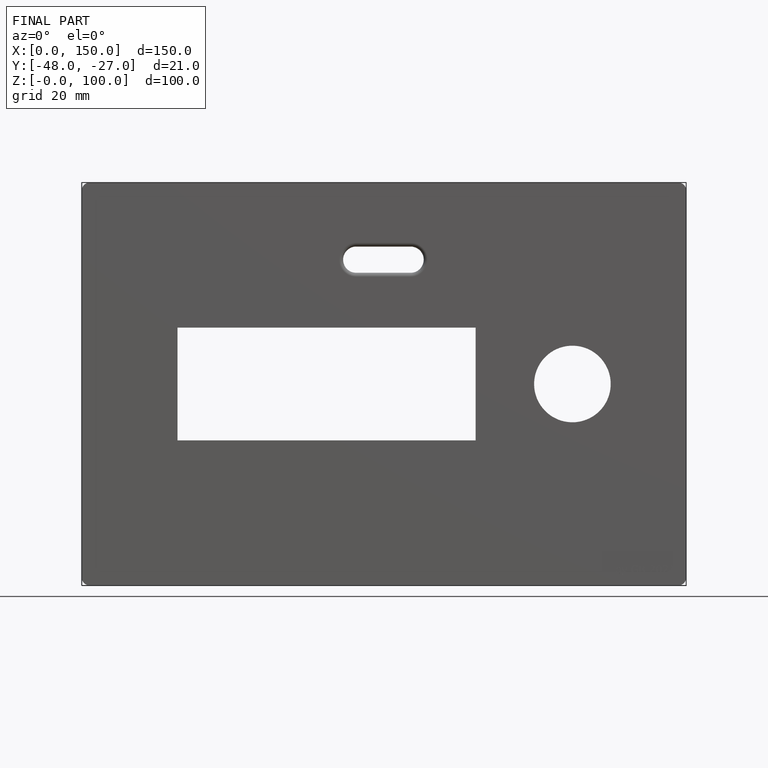
[diagram: finished part — front view with bounding-box wireframe]
